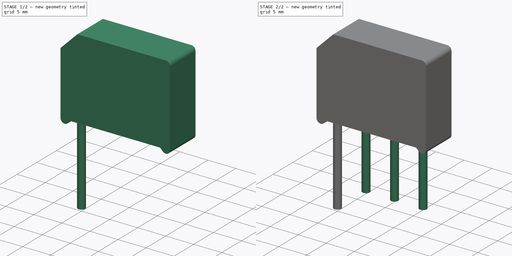
[diagram: build sequence overview — one tinted view per stage of 2, left to right]
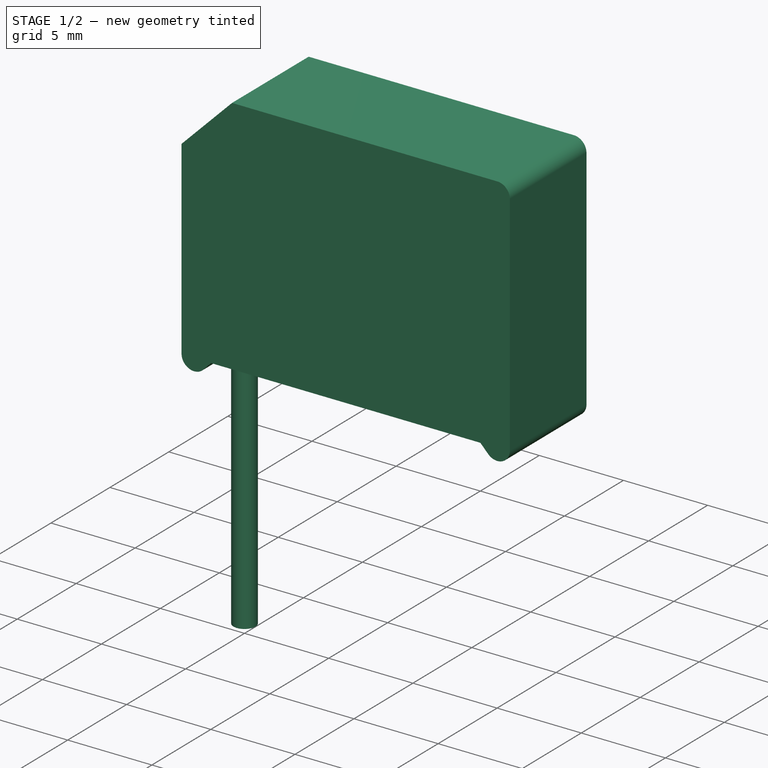
[diagram: stage 1 of 2 — iso view after this stage's code; geometry added in this stage tinted green]
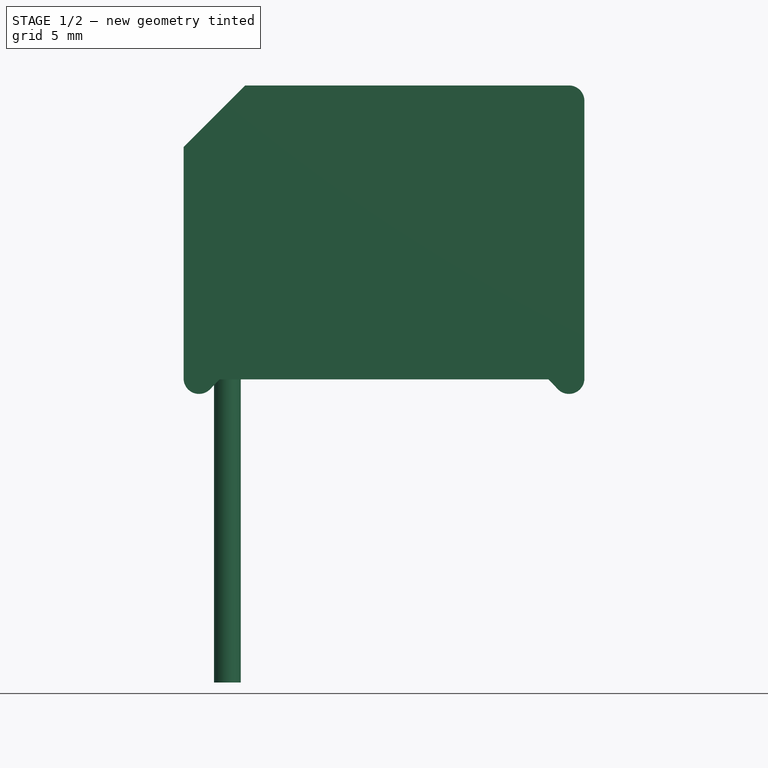
[diagram: stage 1 of 2 — front view after this stage's code; geometry added in this stage tinted green]
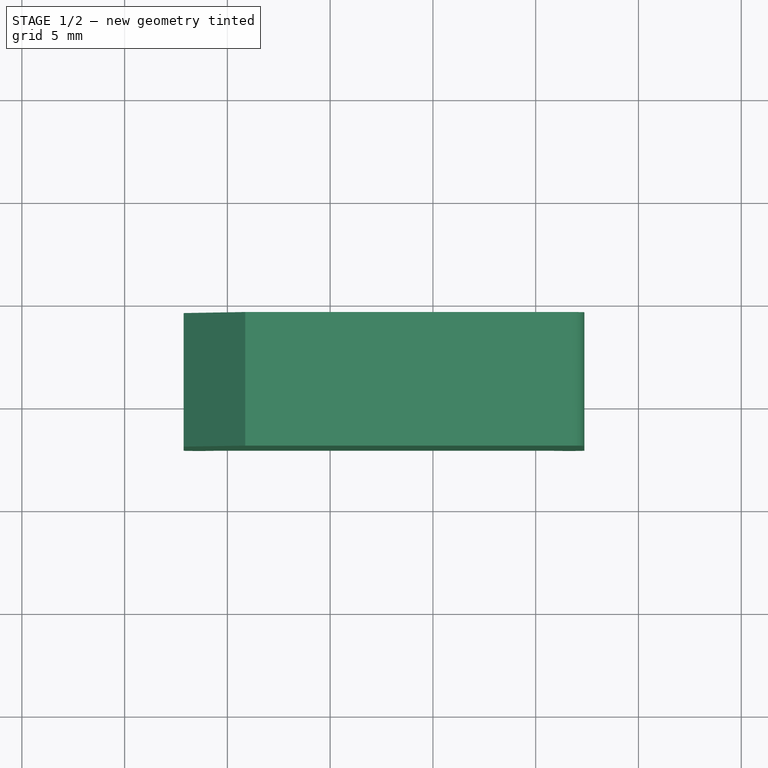
[diagram: stage 1 of 2 — top view after this stage's code; geometry added in this stage tinted green]
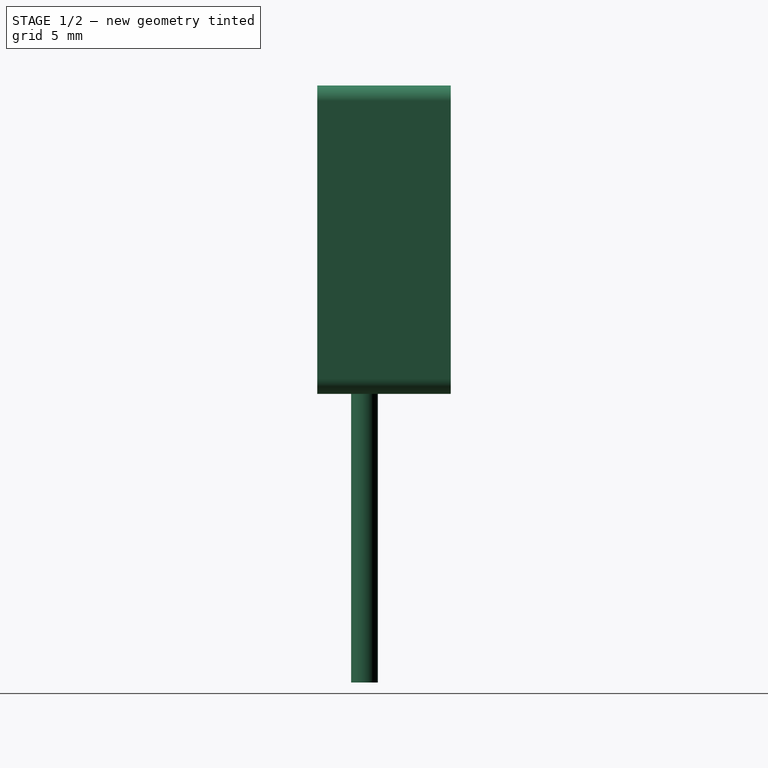
[diagram: stage 1 of 2 — right view after this stage's code; geometry added in this stage tinted green]
FCSTD DOCUMENT  (FreeCAD 0.16R6712 (Git))
Label: Diode_Bridge_Vishay_KBL
License: All rights reserved
LicenseURL: http://en.wikipedia.org/wiki/All_rights_reserved
objects: Sketcher::SketchObject×3, PartDesign::Pad×3, Part::Feature×3, App::DocumentObjectGroup×1, Part::MultiFuse×1
note: 13 computed .brp shape members not serialized (recipe doc carries the construction recipe); baked Part::Feature solids carry a one-line shape summary decoded from their .brp

FEATURE [Sketcher::SketchObject] Sketch002
  Placement = pos=(0,0,4) rot=(0,0,1;3.14159rad)
  expr: Constraints[2] = 0
  sketch-geometry (1):
    g0: Circle CenterX=0 CenterY=0 CenterZ=0 NormalX=0 NormalY=0 NormalZ=1 Radius=0.65
  constraints (3):
    c: PointOnObject(g0,g-1)
    c: Radius(g0) = 0.65
    c: DistanceX(g-1,g0) = 0
FEATURE [PartDesign::Pad] Pad002
  Length = 18
  Length2 = 100
  Placement = pos=(0,0,4) rot=(0,0,1;3.14159rad)
  Reversed = true
  Sketch = -> Sketch002
  Type = 0
FEATURE [Part::Feature] FusionAxisZ1  label="Z"
  shape: bbox 0.8 x 0.8 x 14 mm, 8 faces (baked)
FEATURE [Part::Feature] FusionAxisY1  label="Y"
  Placement = pos=(0,0,0.05) rot=(-1,0,0;1.5708rad)
  shape: bbox 0.8 x 14 x 0.8 mm, 8 faces (baked)
FEATURE [Part::Feature] FusionAxisX1  label="X"
  Placement = pos=(0,-0.05,0) rot=(0,1,0;1.5708rad)
  shape: bbox 14 x 0.8 x 0.8 mm, 8 faces (baked)
FEATURE [App::DocumentObjectGroup] axis
  Group = -> [FusionAxisZ1,FusionAxisY1,FusionAxisX1]
FEATURE [PartDesign::Pad] Pad003
  Length = 4.2
  Length2 = 2.3
  Placement = pos=(0,0,0.05) rot=(0,0.707107,0.707107;3.14159rad)
  Sketch = -> Sketch001
  Type = 4
  expr: Length = 4.2
  expr: Length2 = 2.3
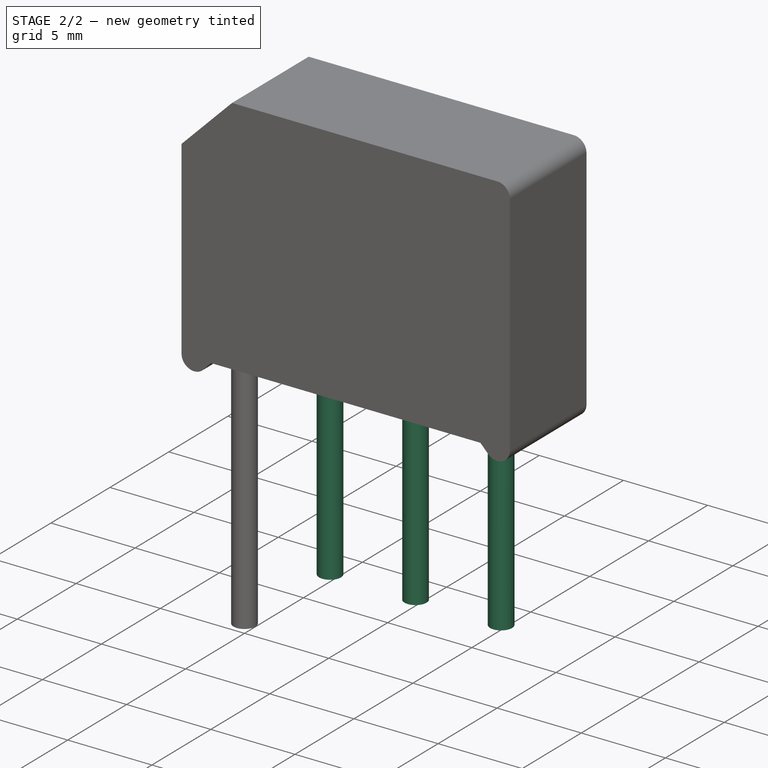
[diagram: stage 2 of 2 — iso view after this stage's code; geometry added in this stage tinted green]
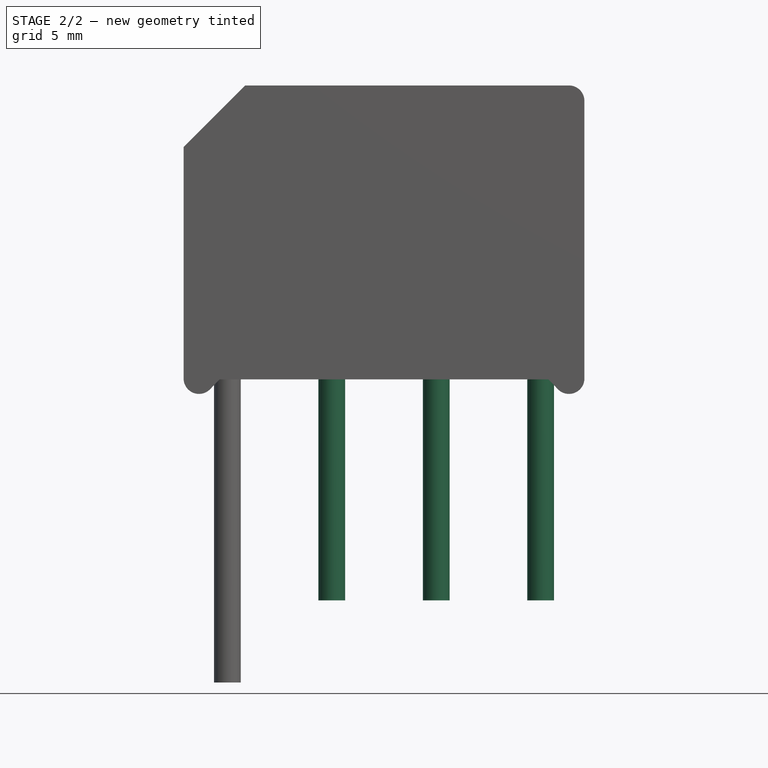
[diagram: stage 2 of 2 — front view after this stage's code; geometry added in this stage tinted green]
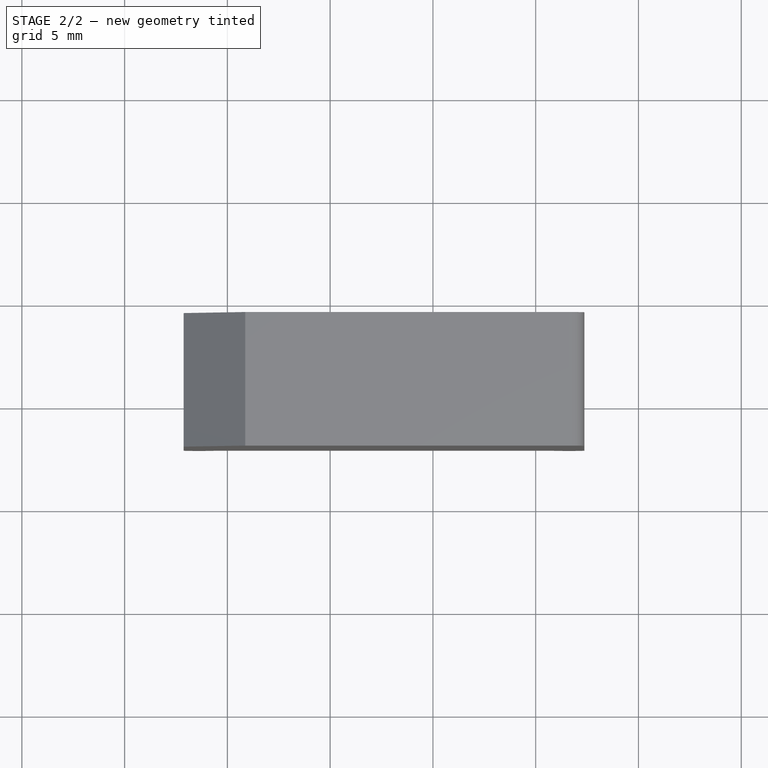
[diagram: stage 2 of 2 — top view after this stage's code; geometry added in this stage tinted green]
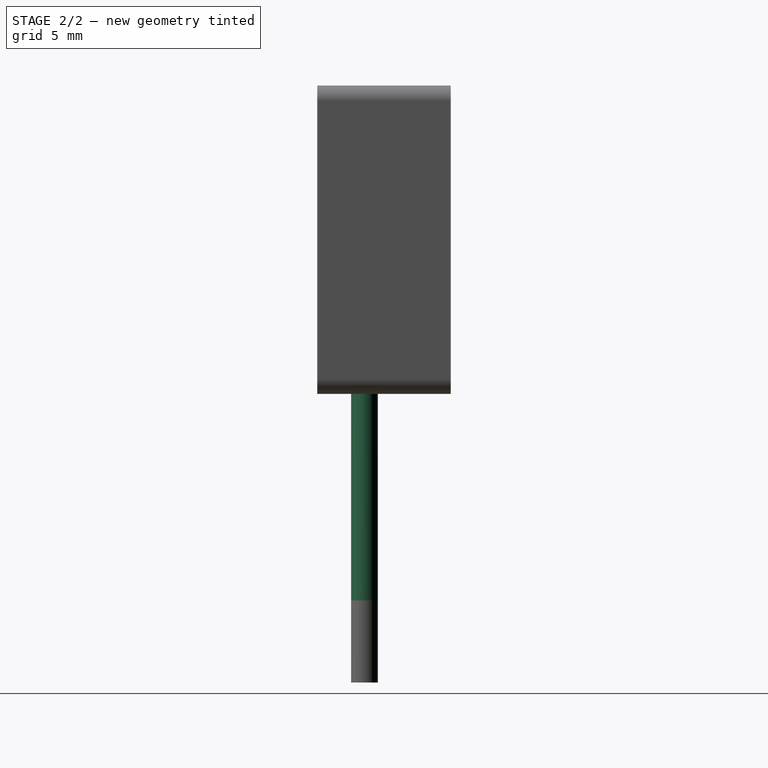
[diagram: stage 2 of 2 — right view after this stage's code; geometry added in this stage tinted green]
FEATURE [Sketcher::SketchObject] Sketch001
  Placement = pos=(0,0,0.05) rot=(0,0.707107,0.707107;3.14159rad)
  expr: Constraints[12] = 19.5 - (19.5 - 3 * 5.08) / 2
  sketch-geometry (12):
    g0: LineSegment StartX=2.13 StartY=0.742383 StartZ=0 EndX=2.13 EndY=12 EndZ=0
    g1: LineSegment StartX=2.13 StartY=12 StartZ=0 EndX=-0.87 EndY=15 EndZ=0
    g2: LineSegment StartX=-0.87 StartY=15 StartZ=0 EndX=-16.62 EndY=15 EndZ=0
    g3: LineSegment StartX=-17.37 StartY=14.25 StartZ=0 EndX=-17.37 EndY=0.742383 EndZ=0
    g4: ArcOfCircle CenterX=-16.62 CenterY=0.742383 CenterZ=0 NormalX=0 NormalY=0 NormalZ=1 Radius=0.75 StartAngle=3.14159 EndAngle=4.56975
    g5: ArcOfCircle CenterX=1.38 CenterY=0.742383 CenterZ=0 NormalX=0 NormalY=0 NormalZ=1 Radius=0.75 StartAngle=4.56975 EndAngle=6.28319
    g6: ArcOfCircle CenterX=-16.62 CenterY=14.25 CenterZ=0 NormalX=0 NormalY=0 NormalZ=1 Radius=0.75 StartAngle=1.5708 EndAngle=3.14159
    g7: ArcOfCircle CenterX=-16.62 CenterY=0.742383 CenterZ=0 NormalX=0 NormalY=0 NormalZ=1 Radius=0.75 StartAngle=4.56975 EndAngle=5.51708
    g8: LineSegment StartX=-16.0795 StartY=0.222381 StartZ=0 EndX=-15.62 EndY=0.7 EndZ=0
    g9: LineSegment StartX=-15.62 StartY=0.7 StartZ=0 EndX=0.38 EndY=0.7 EndZ=0
    g10: LineSegment StartX=0.38 StartY=0.7 StartZ=0 EndX=0.839539 EndY=0.222381 EndZ=0
    g11: ArcOfCircle CenterX=1.38 CenterY=0.742383 CenterZ=0 NormalX=0 NormalY=0 NormalZ=1 Radius=0.75 StartAngle=3.9077 EndAngle=4.56975
  constraints (34):
    c: Vertical(g0)
    c: Coincident(g2,g1)
    c: Horizontal(g2)
    c: Vertical(g3)
    c: Coincident(g0,g1)
    c: Angle(g1,g0) = 2.35619
    c: DistanceY(g0,g1) = 3
    c: Tangent(g3,g4) = -1.5708
    c: Tangent(g0,g5) = -1.5708
    c: Tangent(g3,g6) = -1.5708
    c: Tangent(g2,g6) = -1.5708
    c: DistanceX(g3,g0) = 19.5
    c: DistanceX(g3,g-1) = 17.37
    c: Equal(g5,g4)
    c: Equal(g4,g6)
    c: Radius(g5) = 0.75
    c: DistanceY(g4,g2) = 15
    c: Coincident(g7,g4)
    c: Coincident(g7,g4)
    c: Coincident(g8,g7)
    c: Coincident(g9,g8)
    c: Horizontal(g9)
    c: Coincident(g10,g9)
    c: Coincident(g11,g5)
    c: Coincident(g11,g5)
    c: Coincident(g11,g10)
    c: DistanceY(g4,g5) = 0
    c: Tangent(g10,g11)
    c: Tangent(g7,g8)
    c: DistanceY(g4,g8) = 0.7
    c: Equal(g10,g8)
    c: DistanceY(g4,g5) = 0
    c: PointOnObject(g4,g-1)
    c: DistanceX(g9,g9) = 16
FEATURE [Sketcher::SketchObject] Sketch
  Placement = pos=(0,0,4) rot=(0,0,1;0rad)
  expr: Constraints[5] = 1.3 / 2
  sketch-geometry (3):
    g0: Circle CenterX=5.08 CenterY=0 CenterZ=0 NormalX=0 NormalY=0 NormalZ=1 Radius=0.65
    g1: Circle CenterX=10.16 CenterY=0 CenterZ=0 NormalX=0 NormalY=0 NormalZ=1 Radius=0.65
    g2: Circle CenterX=15.24 CenterY=0 CenterZ=0 NormalX=0 NormalY=0 NormalZ=1 Radius=0.65
  constraints (9):
    c: PointOnObject(g1,g-1)
    c: PointOnObject(g2,g-1)
    c: Equal(g1,g0)
    c: Equal(g0,g2)
    c: DistanceX(g1,g2) = 5.08
    c: Radius(g2) = 0.65
    c: PointOnObject(g0,g-1)
    c: DistanceX(g0,g1) = 5.08
    c: DistanceX(g-1,g0) = 5.08
FEATURE [PartDesign::Pad] Pad
  Length = 14
  Length2 = 100
  Placement = pos=(0,0,4) rot=(0,0,1;0rad)
  Reversed = true
  Sketch = -> Sketch
  Type = 0
FEATURE [Part::MultiFuse] Pad003_mp_cp  label="Diode_Bridge_Vishay_KBL"
  Shapes = -> [Pad003,Pad,Pad002]
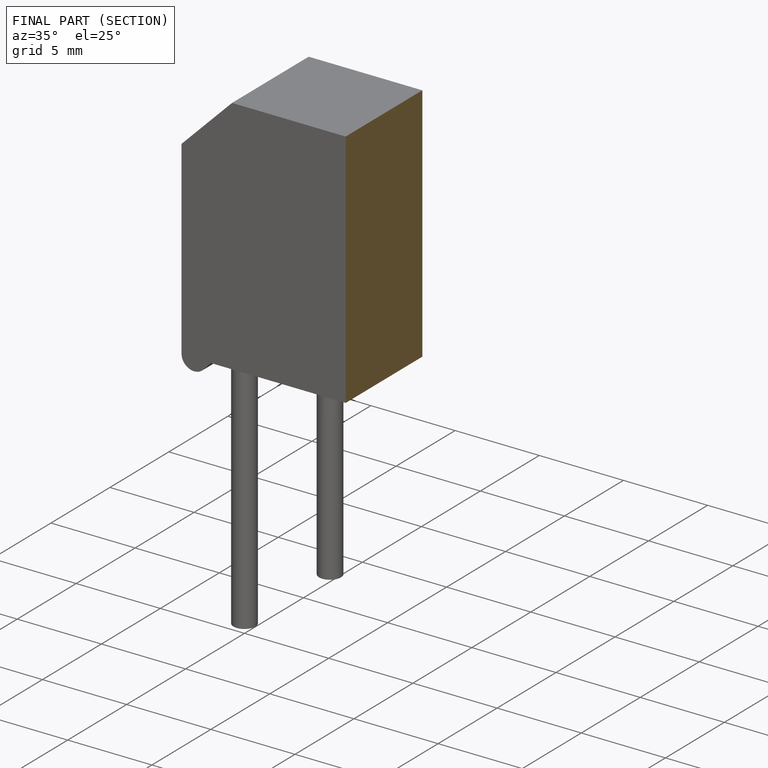
[diagram: finished part — half-section view (interior)]
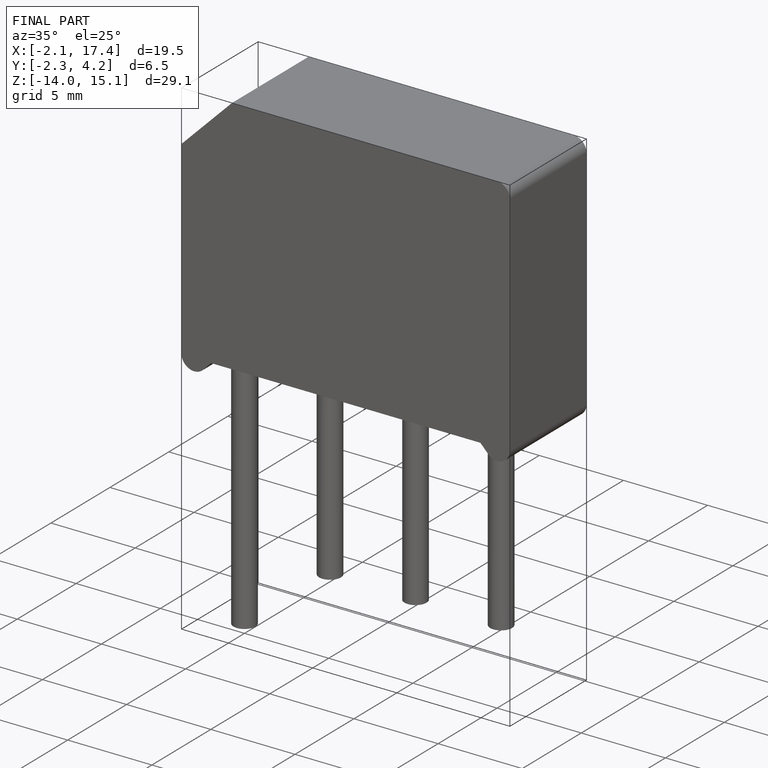
[diagram: finished part — iso view with bounding-box wireframe]
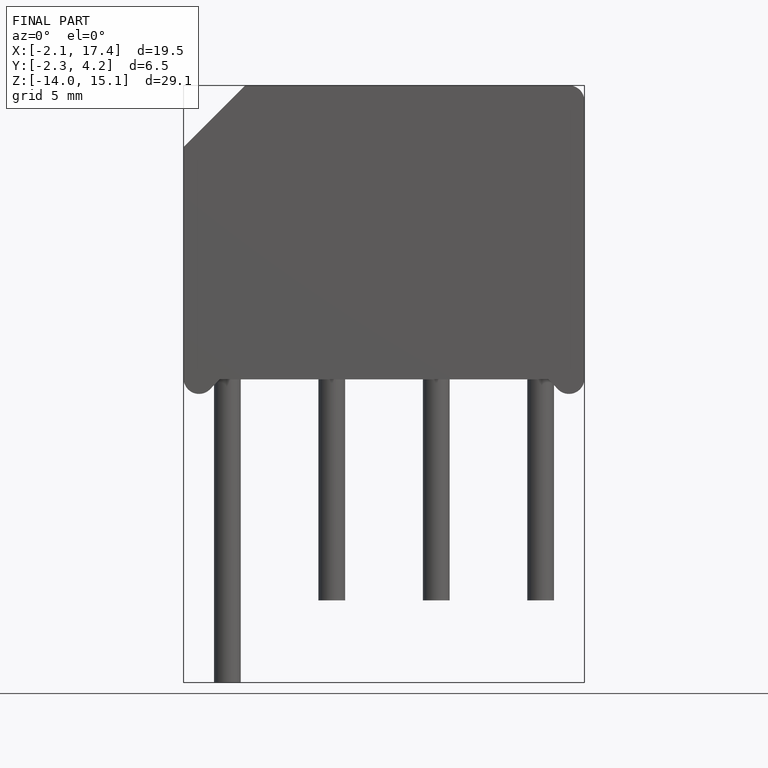
[diagram: finished part — front view with bounding-box wireframe]
